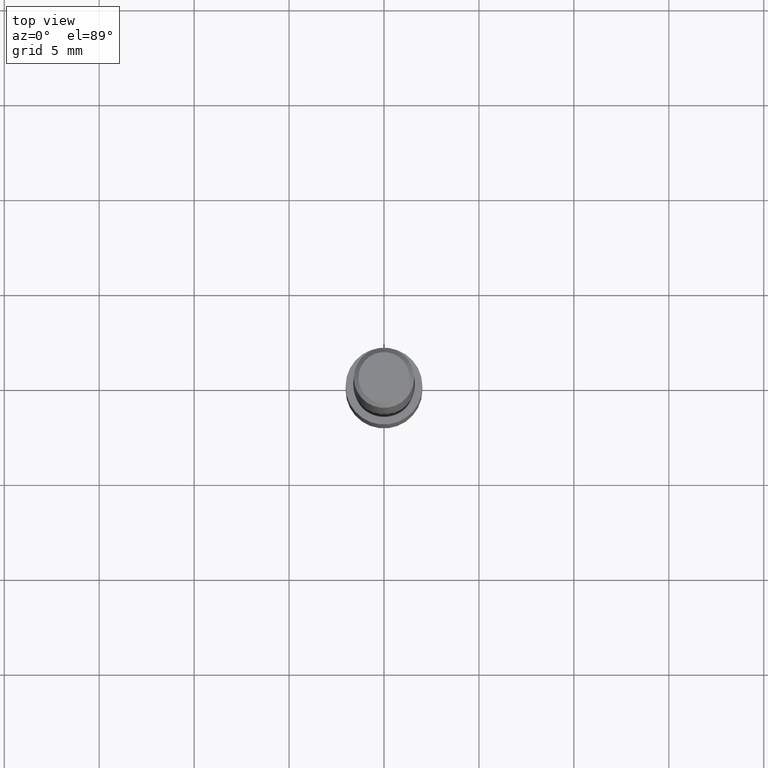
[diagram: clean part render]
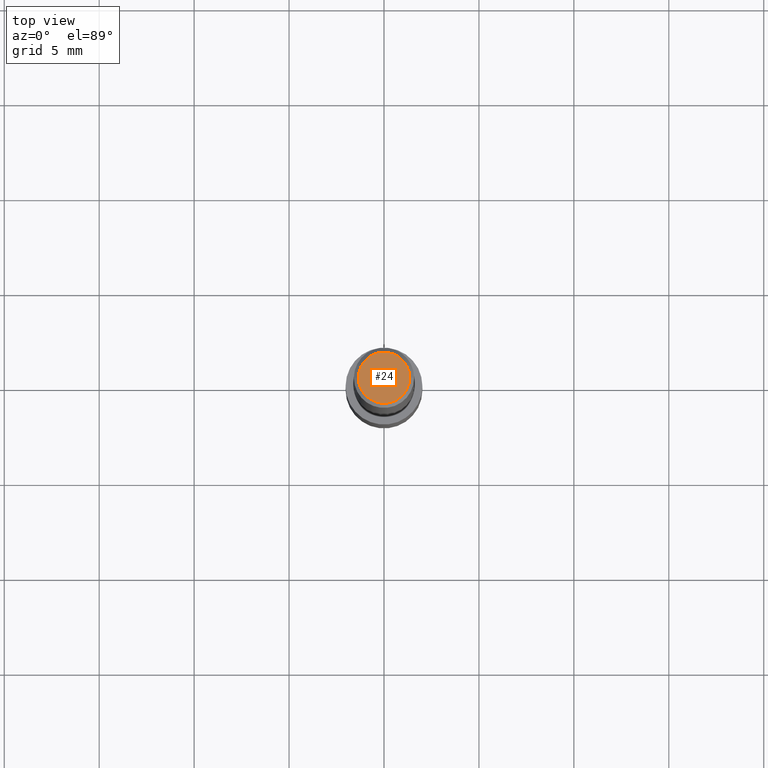
[diagram: same view with one face highlighted and labeled with its STEP entity id]
A machine part, top view. The second image highlights one B-rep face of the part: STEP entity #24.
In plain terms, the highlighted planar face has unit normal (0, -0, -1).
Its self-contained STEP definition (entity closure, byte-faithful):
#3 = EDGE_CURVE ( 'NONE', #205, #311, #156, .T. ) ;
#13 = EDGE_CURVE ( 'NONE', #311, #205, #36, .T. ) ;
#22 = AXIS2_PLACEMENT_3D ( 'NONE', #99, #318, #124 ) ;
#23 = ORIENTED_EDGE ( 'NONE', *, *, #3, .T. ) ;
#24 = ADVANCED_FACE ( 'NONE', ( #28 ), #116, .F. ) ;
#28 = FACE_OUTER_BOUND ( 'NONE', #239, .T. ) ;
#36 = CIRCLE ( 'NONE', #298, 0.05312499999999999861 ) ;
#50 = CARTESIAN_POINT ( 'NONE',  ( -3.743544432386672853E-50, 5.344789307371238476E-36, 1.530808498934197599E-21 ) ) ;
#92 = DIRECTION ( 'NONE',  ( -1.000000000000000000, 6.982962677686265922E-15, -4.876176775795935793E-29 ) ) ;
#99 = CARTESIAN_POINT ( 'NONE',  ( -7.487088864773345706E-50, 1.068957861474247695E-35, 3.061616997868395197E-21 ) ) ;
#116 = PLANE ( 'NONE',  #190 ) ;
#121 = CARTESIAN_POINT ( 'NONE',  ( -7.487088864773345706E-50, 1.068957861474247695E-35, 3.061616997868395197E-21 ) ) ;
#124 = DIRECTION ( 'NONE',  ( 1.000000000000000000, -6.982962677686266711E-15, 4.876176628004948512E-29 ) ) ;
#156 = CIRCLE ( 'NONE', #22, 0.05312499999999999861 ) ;
#190 = AXIS2_PLACEMENT_3D ( 'NONE', #50, #232, #92 ) ;
#205 = VERTEX_POINT ( 'NONE', #319 ) ;
#232 = DIRECTION ( 'NONE',  ( 2.438088387897960049E-29, -3.491481338843145188E-15, -1.000000000000000000 ) ) ;
#239 = EDGE_LOOP ( 'NONE', ( #265, #23 ) ) ;
#261 = DIRECTION ( 'NONE',  ( 1.000000000000000000, -6.982962677686266711E-15, 4.876176628004948512E-29 ) ) ;
#265 = ORIENTED_EDGE ( 'NONE', *, *, #13, .T. ) ;
#297 = DIRECTION ( 'NONE',  ( -2.445468806185136597E-29, 3.491481338843145583E-15, 1.000000000000000000 ) ) ;
#298 = AXIS2_PLACEMENT_3D ( 'NONE', #121, #297, #261 ) ;
#311 = VERTEX_POINT ( 'NONE', #334 ) ;
#318 = DIRECTION ( 'NONE',  ( -2.445468806185136597E-29, 3.491481338843145583E-15, 1.000000000000000000 ) ) ;
#319 = CARTESIAN_POINT ( 'NONE',  ( 0.05312499999999999861, -4.129888592719939842E-16, 3.061617000609493422E-21 ) ) ;
#334 = CARTESIAN_POINT ( 'NONE',  ( -0.05312499999999999861, 3.873362110279099094E-16, 3.061616995216862494E-21 ) ) ;